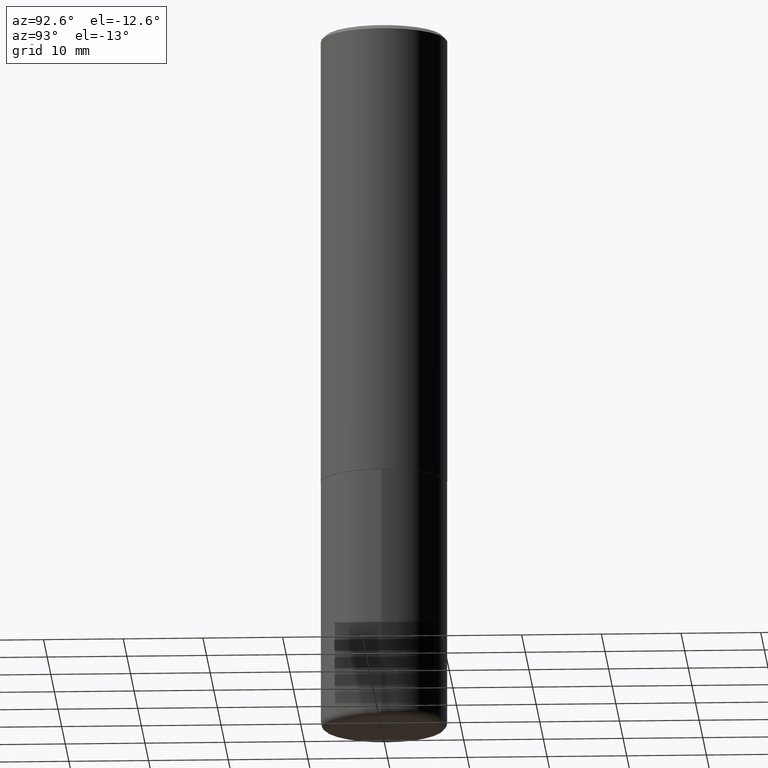
[diagram: clean part render]
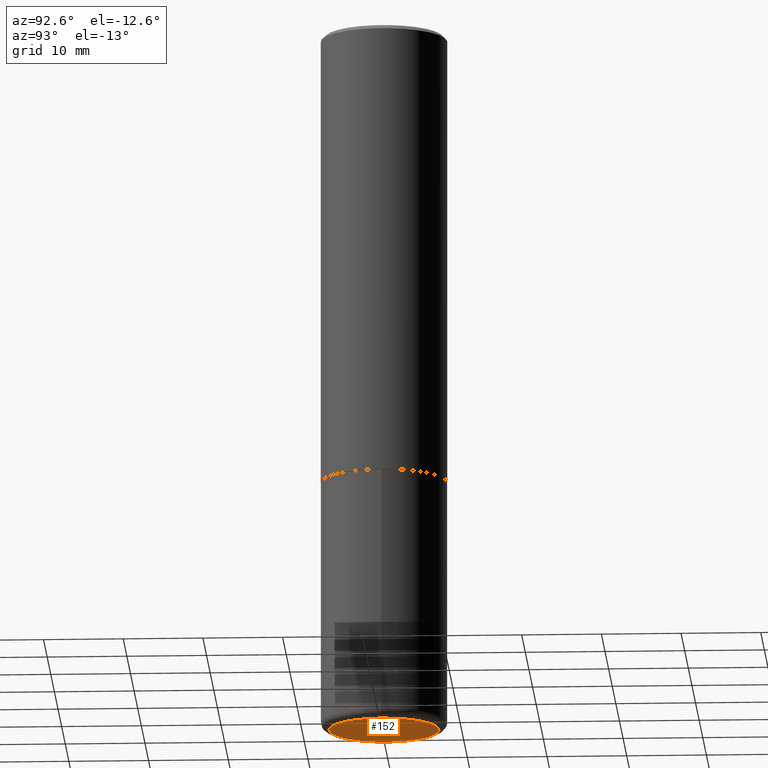
[diagram: same view with one face highlighted and labeled with its STEP entity id]
A machine part, auxiliary view. The second image highlights one B-rep face of the part: STEP entity #152.
In plain terms, the highlighted planar face has unit normal (0, -0, -1).
Its self-contained STEP definition (entity closure, byte-faithful):
#23 = CIRCLE ( 'NONE', #56, 0.2725000000000000200 ) ;
#26 = EDGE_CURVE ( 'NONE', #329, #297, #23, .T. ) ;
#56 = AXIS2_PLACEMENT_3D ( 'NONE', #351, #76, #276 ) ;
#59 = DIRECTION ( 'NONE',  ( -1.000000000000000000, 6.982962677686265922E-15, -4.876176775795935793E-29 ) ) ;
#76 = DIRECTION ( 'NONE',  ( -2.445468806185136597E-29, 3.491481338843145583E-15, 1.000000000000000000 ) ) ;
#77 = CARTESIAN_POINT ( 'NONE',  ( 0.2725000000000000200, -1.412304201562051450E-14, -3.499999999999999112 ) ) ;
#82 = ORIENTED_EDGE ( 'NONE', *, *, #26, .F. ) ;
#85 = CARTESIAN_POINT ( 'NONE',  ( 8.559140821647976968E-29, -1.222018468595100619E-14, -3.499999999999999112 ) ) ;
#105 = AXIS2_PLACEMENT_3D ( 'NONE', #387, #157, #59 ) ;
#116 = AXIS2_PLACEMENT_3D ( 'NONE', #85, #248, #184 ) ;
#152 = ADVANCED_FACE ( 'NONE', ( #384 ), #389, .T. ) ;
#157 = DIRECTION ( 'NONE',  ( 2.438088387897960049E-29, -3.491481338843145188E-15, -1.000000000000000000 ) ) ;
#184 = DIRECTION ( 'NONE',  ( 1.000000000000000000, -6.982962677686266711E-15, 0.000000000000000000 ) ) ;
#207 = ORIENTED_EDGE ( 'NONE', *, *, #331, .F. ) ;
#224 = CIRCLE ( 'NONE', #116, 0.2725000000000000200 ) ;
#248 = DIRECTION ( 'NONE',  ( -2.445468806185136597E-29, 3.491481338843145583E-15, 1.000000000000000000 ) ) ;
#257 = CARTESIAN_POINT ( 'NONE',  ( -0.2725000000000000200, -1.007201755707585313E-14, -3.499999999999999112 ) ) ;
#276 = DIRECTION ( 'NONE',  ( 1.000000000000000000, -6.982962677686266711E-15, 0.000000000000000000 ) ) ;
#297 = VERTEX_POINT ( 'NONE', #257 ) ;
#302 = EDGE_LOOP ( 'NONE', ( #82, #207 ) ) ;
#329 = VERTEX_POINT ( 'NONE', #77 ) ;
#331 = EDGE_CURVE ( 'NONE', #297, #329, #224, .T. ) ;
#351 = CARTESIAN_POINT ( 'NONE',  ( 8.559140821647976968E-29, -1.222018468595100619E-14, -3.499999999999999112 ) ) ;
#384 = FACE_OUTER_BOUND ( 'NONE', #302, .T. ) ;
#387 = CARTESIAN_POINT ( 'NONE',  ( 1.345949854884385100E-28, -5.202593509565742482E-15, -3.499999999999999112 ) ) ;
#389 = PLANE ( 'NONE',  #105 ) ;